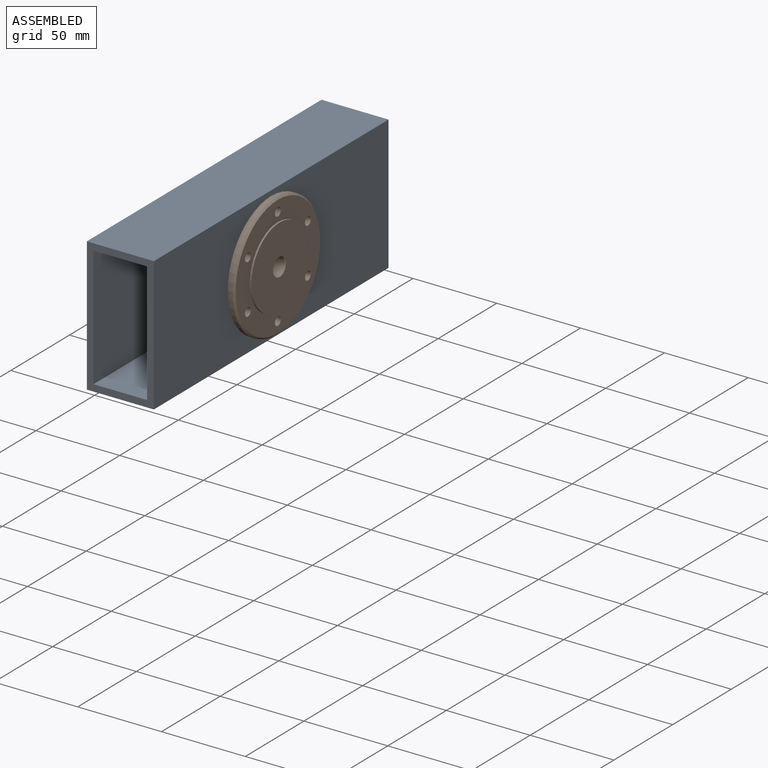
[diagram: assembled view]
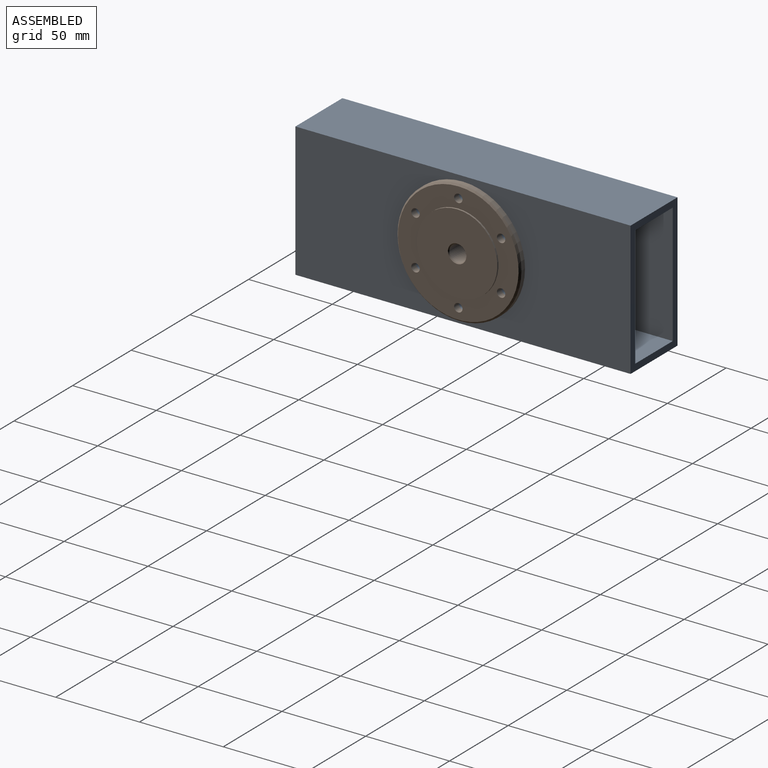
[diagram: assembled view, second angle]
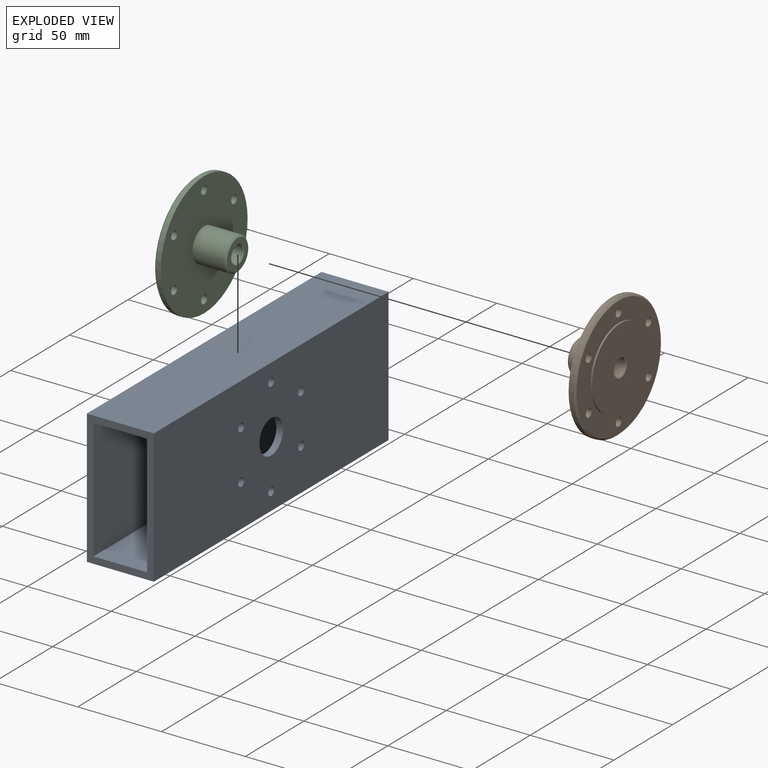
[diagram: exploded view]
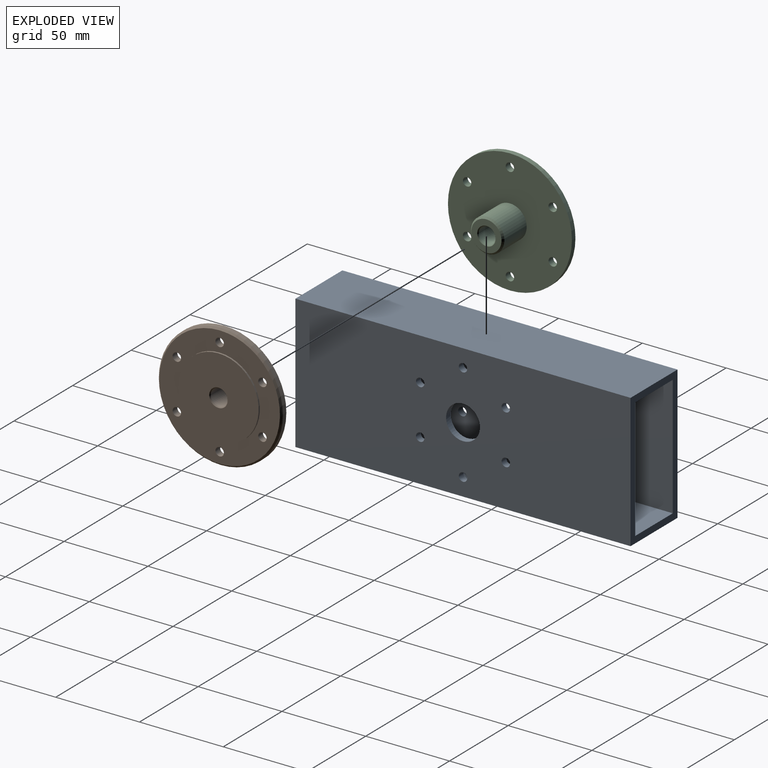
[diagram: exploded view, second angle]
ASSEMBLY  parts=3 mates=2
PART A: 24 faces, bbox 40x200x80 mm
  f0: plane 200x32mm, normal (0,0,-1), area 6400mm2, adj f1,f7,f8,f9
  f1: plane 200x72mm, normal (-1,0,0), area 13961.7mm2, adj f0,f2,f8,f9,f11,f18,f19,f20
  f2: plane 200x32mm, normal (0,0,1), area 6400mm2, adj f1,f7,f8,f9
  f3: plane 200x80mm, normal (-1,0,0), area 15561.7mm2, adj f4,f6,f8,f9,f10,f12,f13,f14
  f4: plane 200x40mm, normal (0,0,-1), area 8000mm2, adj f3,f5,f8,f9
  f5: plane 200x80mm, normal (1,0,0), area 15561.7mm2, adj f4,f6,f8,f9,f11,f18,f19,f20
  f6: plane 200x40mm, normal (0,0,1), area 8000mm2, adj f3,f5,f8,f9
  f7: plane 200x72mm, normal (1,0,0), area 13961.7mm2, adj f0,f2,f8,f9,f10,f12,f13,f14
  f8: plane 80x40mm, normal (0,-1,0), area 896mm2, adj f0,f1,f2,f3,f4,f5,f6,f7
  f9: plane 80x40mm, normal (0,1,0), area 896mm2, adj f0,f1,f2,f3,f4,f5,f6,f7
  f10: cylinder r=10.1mm len=20.2mm, axis (1,0,0), area 253.8mm2, adj f3,f7
  f11: cylinder r=10.1mm len=20.2mm, axis (1,0,0), area 253.8mm2, adj f1,f5
  f12: cylinder r=2.5mm len=5mm, axis (1,0,0), area 62.8mm2, adj f3,f7
  f13: cylinder r=2.5mm len=5mm, axis (1,0,0), area 62.8mm2, adj f3,f7
  f14: cylinder r=2.5mm len=5mm, axis (1,0,0), area 62.8mm2, adj f3,f7
  f15: cylinder r=2.5mm len=5mm, axis (1,0,0), area 62.8mm2, adj f3,f7
  f16: cylinder r=2.5mm len=5mm, axis (1,0,0), area 62.8mm2, adj f3,f7
  f17: cylinder r=2.5mm len=5mm, axis (1,0,0), area 62.8mm2, adj f3,f7
  f18: cylinder r=2.5mm len=5mm, axis (1,0,0), area 62.8mm2, adj f1,f5
  f19: cylinder r=2.5mm len=5mm, axis (1,0,0), area 62.8mm2, adj f1,f5
  f20: cylinder r=2.5mm len=5mm, axis (1,0,0), area 62.8mm2, adj f1,f5
  f21: cylinder r=2.5mm len=5mm, axis (1,0,0), area 62.8mm2, adj f1,f5
  f22: cylinder r=2.5mm len=5mm, axis (1,0,0), area 62.8mm2, adj f1,f5
  f23: cylinder r=2.5mm len=5mm, axis (1,0,0), area 62.8mm2, adj f1,f5
PART B: 18 faces, bbox 25x74x74 mm
  f0: cylinder r=5mm len=24mm, axis (-1,0,0), area 754mm2, adj f16,f17
  f1: plane 18x18mm, normal (1,0,0), area 159.4mm2, adj f15,f16
  f2: cylinder r=10mm len=20mm, axis (-1,0,0), area 1193.8mm2, adj f3,f15
  f3: plane 74x74mm, normal (1,0,0), area 3868.9mm2, adj f2,f4,f8,f9,f10,f11,f12,f13
  f4: cylinder r=37mm len=74mm, axis (-1,0,0), area 697.4mm2, adj f3,f14
  f5: plane 72x72mm, normal (-1,0,0), area 2144.1mm2, adj f6,f8,f9,f10,f11,f12,f13,f14
  f6: cylinder r=24mm len=48mm, axis (-1,0,0), area 150.8mm2, adj f5,f7
  f7: plane 48x48mm, normal (-1,0,0), area 1714.5mm2, adj f6,f17
  f8: cylinder r=2.5mm len=5mm, axis (1,0,0), area 62.8mm2, adj f3,f5
  f9: cylinder r=2.5mm len=5mm, axis (1,0,0), area 62.8mm2, adj f3,f5
  f10: cylinder r=2.5mm len=5mm, axis (1,0,0), area 62.8mm2, adj f3,f5
  f11: cylinder r=2.5mm len=5mm, axis (1,0,0), area 62.8mm2, adj f3,f5
  f12: cylinder r=2.5mm len=5mm, axis (1,0,0), area 62.8mm2, adj f3,f5
  f13: cylinder r=2.5mm len=5mm, axis (1,0,0), area 62.8mm2, adj f3,f5
  f14: cone r=36mm half-angle=45deg, axis (1,0,0), area 324.3mm2, adj f4,f5
  f15: cone r=10mm half-angle=45deg, axis (-1,0,0), area 84.4mm2, adj f1,f2
  f16: cone r=5.5mm half-angle=45deg, axis (1,0,0), area 23.3mm2, adj f0,f1
  f17: cone r=5mm half-angle=45deg, axis (-1,0,0), area 23.3mm2, adj f0,f7
PART C: same geometry as B
PLACE A t=(131.54,34.11,65.29)mm
PLACE B rot(axis=(0,0,-1),180deg) t=(151.54,-65.89,65.29)mm
PLACE C t=(111.54,-65.89,65.29)mm
MATE fastened A.f10 <-> B.f0  axis (1,0,0) through (151.54,-65.89,65.29)mm
MATE fastened A.f10 <-> C.f0  axis (-1,0,0) through (111.54,-65.89,65.29)mm
